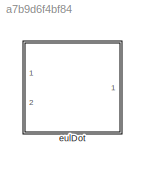
MODEL slx_a7b9d6f4bf84
KIND library
CONFIG AbsTol = auto
CONFIG EnableMultiTasking = off
CONFIG FixedStep = auto
CONFIG MaxStep = auto
CONFIG MinStep = auto
CONFIG RelTol = 1e-3
CONFIG SampleTimeConstraint = Unconstrained
CONFIG SolverName = VariableStepAuto
CONFIG StartTime = 0.0
CONFIG StopTime = 10.0
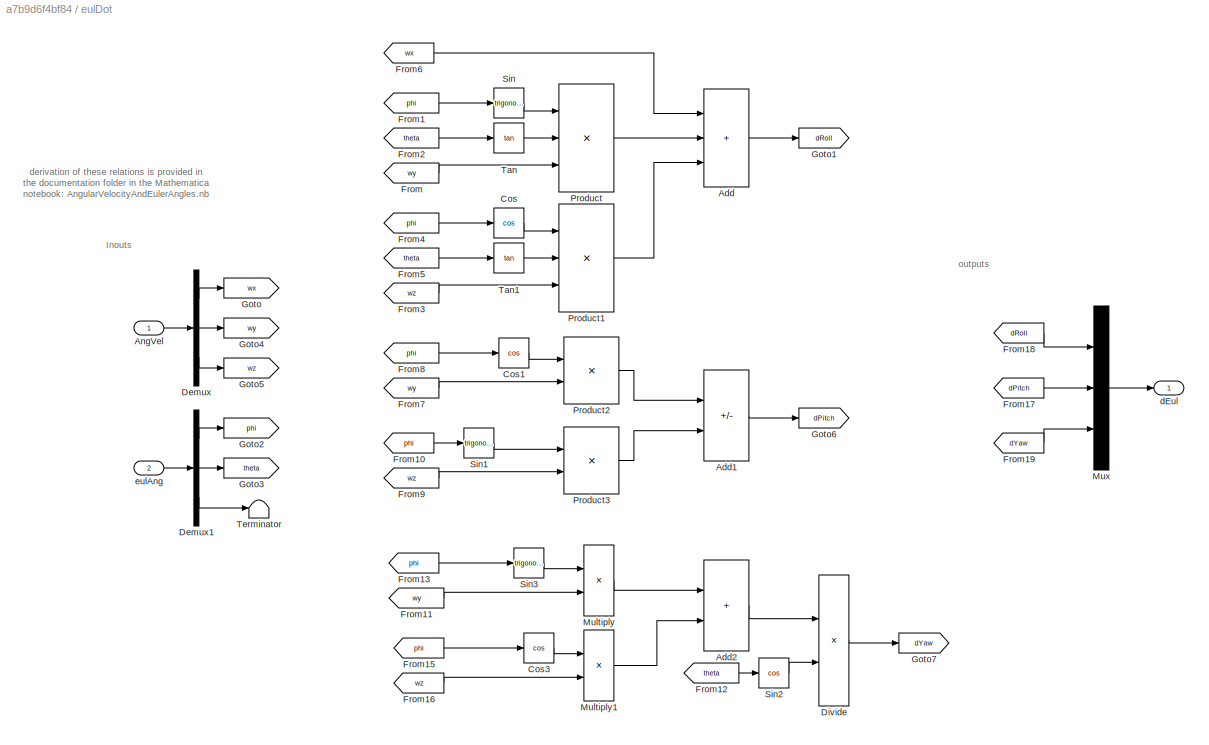
BLOCK [SubSystem] eulDot
  Ports = [2, 1]
  RequestExecContextInheritance = off
BLOCK [Sum] eulDot/Add
  IconShape = rectangular
  Inputs = +++
  Ports = [3, 1]
BLOCK [Sum] eulDot/Add1
  IconShape = rectangular
  Inputs = +-
  Ports = [2, 1]
BLOCK [Sum] eulDot/Add2
  IconShape = rectangular
  Ports = [2, 1]
BLOCK [Inport] eulDot/AngVel
BLOCK [Trigonometry] eulDot/Cos
  Operator = cos
  Ports = [1, 1]
BLOCK [Trigonometry] eulDot/Cos1
  Operator = cos
  Ports = [1, 1]
BLOCK [Trigonometry] eulDot/Cos3
  Operator = cos
  Ports = [1, 1]
BLOCK [Demux] eulDot/Demux
  Outputs = 3
  Ports = [1, 3]
BLOCK [Demux] eulDot/Demux1
  Outputs = 3
  Ports = [1, 3]
BLOCK [Product] eulDot/Divide
  Inputs = */
  Ports = [2, 1]
BLOCK [From] eulDot/From
  GotoTag = wy
BLOCK [From] eulDot/From1
  GotoTag = phi
BLOCK [From] eulDot/From10
  GotoTag = phi
BLOCK [From] eulDot/From11
  GotoTag = wy
BLOCK [From] eulDot/From12
  GotoTag = theta
BLOCK [From] eulDot/From13
  GotoTag = phi
BLOCK [From] eulDot/From15
  GotoTag = phi
BLOCK [From] eulDot/From16
  GotoTag = wz
BLOCK [From] eulDot/From17
  GotoTag = dPitch
BLOCK [From] eulDot/From18
  GotoTag = dRoll
BLOCK [From] eulDot/From19
  GotoTag = dYaw
BLOCK [From] eulDot/From2
  GotoTag = theta
BLOCK [From] eulDot/From3
  GotoTag = wz
BLOCK [From] eulDot/From4
  GotoTag = phi
BLOCK [From] eulDot/From5
  GotoTag = theta
BLOCK [From] eulDot/From6
  GotoTag = wx
BLOCK [From] eulDot/From7
  GotoTag = wy
BLOCK [From] eulDot/From8
  GotoTag = phi
BLOCK [From] eulDot/From9
  GotoTag = wz
BLOCK [Goto] eulDot/Goto
  GotoTag = wx
BLOCK [Goto] eulDot/Goto1
  GotoTag = dRoll
BLOCK [Goto] eulDot/Goto2
  GotoTag = phi
BLOCK [Goto] eulDot/Goto3
  GotoTag = theta
BLOCK [Goto] eulDot/Goto4
  GotoTag = wy
BLOCK [Goto] eulDot/Goto5
  GotoTag = wz
BLOCK [Goto] eulDot/Goto6
  GotoTag = dPitch
BLOCK [Goto] eulDot/Goto7
  GotoTag = dYaw
BLOCK [Product] eulDot/Multiply
  Ports = [2, 1]
BLOCK [Product] eulDot/Multiply1
  Ports = [2, 1]
BLOCK [Mux] eulDot/Mux
  DisplayOption = bar
  Inputs = 3
  Ports = [3, 1]
BLOCK [Product] eulDot/Product
  Inputs = 3
  Ports = [3, 1]
BLOCK [Product] eulDot/Product1
  Inputs = 3
  Ports = [3, 1]
BLOCK [Product] eulDot/Product2
  Ports = [2, 1]
BLOCK [Product] eulDot/Product3
  Ports = [2, 1]
BLOCK [Trigonometry] eulDot/Sin
  Ports = [1, 1]
BLOCK [Trigonometry] eulDot/Sin1
  Ports = [1, 1]
BLOCK [Trigonometry] eulDot/Sin2
  Operator = cos
  Ports = [1, 1]
BLOCK [Trigonometry] eulDot/Sin3
  Ports = [1, 1]
BLOCK [Trigonometry] eulDot/Tan
  Operator = tan
  Ports = [1, 1]
BLOCK [Trigonometry] eulDot/Tan1
  Operator = tan
  Ports = [1, 1]
BLOCK [Terminator] eulDot/Terminator
BLOCK [Outport] eulDot/dEul
  VectorParamsAs1DForOutWhenUnconnected = off
BLOCK [Inport] eulDot/eulAng
  Port = 2
ANNOTATION eulDot: Inouts
ANNOTATION eulDot: derivation of these relations is provided in the documentation folder in the Mathematica notebook: AngularVelocityAndEulerAngles.nb
ANNOTATION eulDot: outputs
LINE eulDot/Add1:1 -> eulDot/Goto6:1
LINE eulDot/Add2:1 -> eulDot/Divide:1
LINE eulDot/Add:1 -> eulDot/Goto1:1
LINE eulDot/AngVel:1 -> eulDot/Demux:1
LINE eulDot/Cos1:1 -> eulDot/Product2:1
LINE eulDot/Cos3:1 -> eulDot/Multiply1:1
LINE eulDot/Cos:1 -> eulDot/Product1:1
LINE eulDot/Demux1:1 -> eulDot/Goto2:1
LINE eulDot/Demux1:2 -> eulDot/Goto3:1
LINE eulDot/Demux1:3 -> eulDot/Terminator:1
LINE eulDot/Demux:1 -> eulDot/Goto:1
LINE eulDot/Demux:2 -> eulDot/Goto4:1
LINE eulDot/Demux:3 -> eulDot/Goto5:1
LINE eulDot/Divide:1 -> eulDot/Goto7:1
LINE eulDot/From10:1 -> eulDot/Sin1:1
LINE eulDot/From11:1 -> eulDot/Multiply:2
LINE eulDot/From12:1 -> eulDot/Sin2:1
LINE eulDot/From13:1 -> eulDot/Sin3:1
LINE eulDot/From15:1 -> eulDot/Cos3:1
LINE eulDot/From16:1 -> eulDot/Multiply1:2
LINE eulDot/From17:1 -> eulDot/Mux:2
LINE eulDot/From18:1 -> eulDot/Mux:1
LINE eulDot/From19:1 -> eulDot/Mux:3
LINE eulDot/From1:1 -> eulDot/Sin:1
LINE eulDot/From2:1 -> eulDot/Tan:1
LINE eulDot/From3:1 -> eulDot/Product1:3
LINE eulDot/From4:1 -> eulDot/Cos:1
LINE eulDot/From5:1 -> eulDot/Tan1:1
LINE eulDot/From6:1 -> eulDot/Add:1
LINE eulDot/From7:1 -> eulDot/Product2:2
LINE eulDot/From8:1 -> eulDot/Cos1:1
LINE eulDot/From9:1 -> eulDot/Product3:2
LINE eulDot/From:1 -> eulDot/Product:3
LINE eulDot/Multiply1:1 -> eulDot/Add2:2
LINE eulDot/Multiply:1 -> eulDot/Add2:1
LINE eulDot/Mux:1 -> eulDot/dEul:1
LINE eulDot/Product1:1 -> eulDot/Add:3
LINE eulDot/Product2:1 -> eulDot/Add1:1
LINE eulDot/Product3:1 -> eulDot/Add1:2
LINE eulDot/Product:1 -> eulDot/Add:2
LINE eulDot/Sin1:1 -> eulDot/Product3:1
LINE eulDot/Sin2:1 -> eulDot/Divide:2
LINE eulDot/Sin3:1 -> eulDot/Multiply:1
LINE eulDot/Sin:1 -> eulDot/Product:1
LINE eulDot/Tan1:1 -> eulDot/Product1:2
LINE eulDot/Tan:1 -> eulDot/Product:2
LINE eulDot/eulAng:1 -> eulDot/Demux1:1
